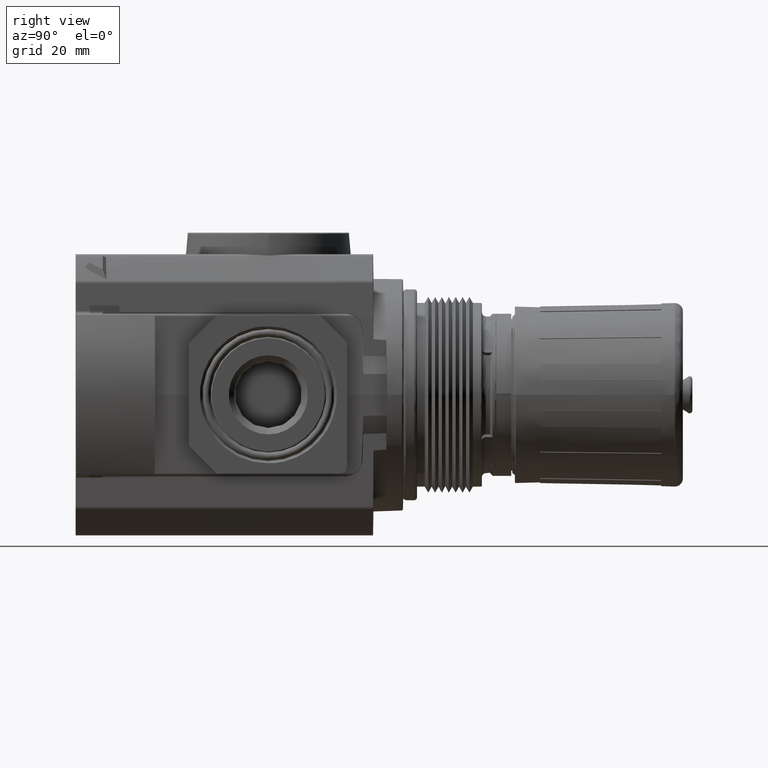
[diagram: clean part render]
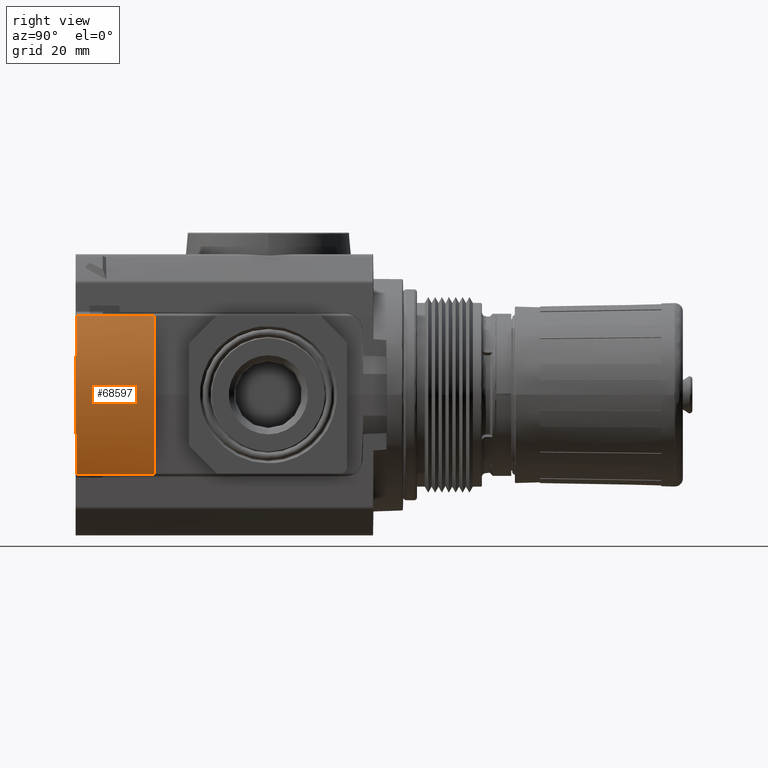
[diagram: same view with one face highlighted and labeled with its STEP entity id]
A machine part, right view. The second image highlights one B-rep face of the part: STEP entity #68597.
In plain terms, the highlighted cylindrical surface (partial cylindrical patch) has radius 31.7 mm, axis along (-0, 1, 0).
Its self-contained STEP definition (entity closure, byte-faithful):
#1038 = LINE ( 'NONE', #42529, #67012 ) ;
#4145 = AXIS2_PLACEMENT_3D ( 'NONE', #4599, #33288, #62708 ) ;
#4599 = CARTESIAN_POINT ( 'NONE',  ( -0.3622047244094492302, 0.5767716535433070613, -1.024442997624098460E-16 ) ) ;
#4888 = CARTESIAN_POINT ( 'NONE',  ( 0.8858389356066497244, 0.002749493199955078526, 0.04970372541741997774 ) ) ;
#5141 = CARTESIAN_POINT ( 'NONE',  ( 0.7428589096599438335, 0.5767716535433070613, -0.5800146375933773468 ) ) ;
#6047 = DIRECTION ( 'NONE',  ( 0.000000000000000000, 0.000000000000000000, 1.000000000000000000 ) ) ;
#9685 = VERTEX_POINT ( 'NONE', #49564 ) ;
#13474 = FACE_OUTER_BOUND ( 'NONE', #74165, .T. ) ;
#14966 = LINE ( 'NONE', #5141, #35538 ) ;
#20112 = CARTESIAN_POINT ( 'NONE',  ( 0.8554303405586340947, 0.003180799581285731568, -0.2749102291122572650 ) ) ;
#22202 = EDGE_CURVE ( 'NONE', #33495, #69875, #1038, .T. ) ;
#25548 = CYLINDRICAL_SURFACE ( 'NONE', #37088, 1.248031496062992129 ) ;
#26517 = CARTESIAN_POINT ( 'NONE',  ( 0.8828079071455615656, 0.002792863552840072362, -0.1003888876088738641 ) ) ;
#27904 = CARTESIAN_POINT ( 'NONE',  ( 0.8609621278550242396, 0.003102753848842853841, 0.2491710359030518129 ) ) ;
#28053 = CARTESIAN_POINT ( 'NONE',  ( 0.7428589096599447217, 0.5767716535433070613, -0.5800146375933775689 ) ) ;
#28155 = DIRECTION ( 'NONE',  ( -0.000000000000000000, 1.000000000000000000, 0.000000000000000000 ) ) ;
#28705 = CARTESIAN_POINT ( 'NONE',  ( -0.3622047244094492302, 0.5767716535433070613, -1.024442997624098460E-16 ) ) ;
#28961 = ORIENTED_EDGE ( 'NONE', *, *, #72873, .T. ) ;
#29071 = DIRECTION ( 'NONE',  ( -0.000000000000000000, 1.000000000000000000, 0.000000000000000000 ) ) ;
#31433 = CARTESIAN_POINT ( 'NONE',  ( 0.7428589126756999228, 0.004727814950376911171, 0.5800146318476547824 ) ) ;
#31577 = DIRECTION ( 'NONE',  ( 0.000000000000000000, -1.000000000000000000, -0.000000000000000000 ) ) ;
#32551 = CARTESIAN_POINT ( 'NONE',  ( 0.8700595125429265719, 0.002974056163604032327, 0.1993695160744456685 ) ) ;
#33288 = DIRECTION ( 'NONE',  ( 0.000000000000000000, -1.000000000000000000, -0.000000000000000000 ) ) ;
#33493 = ORIENTED_EDGE ( 'NONE', *, *, #57541, .F. ) ;
#33495 = VERTEX_POINT ( 'NONE', #68147 ) ;
#34531 = VERTEX_POINT ( 'NONE', #28053 ) ;
#35538 = VECTOR ( 'NONE', #28155, 39.37007874015748143 ) ;
#37088 = AXIS2_PLACEMENT_3D ( 'NONE', #28705, #29071, #6047 ) ;
#37100 = CARTESIAN_POINT ( 'NONE',  ( 0.7428589096599359509, 0.004727814990850045564, -0.5800146375933945553 ) ) ;
#38218 = CARTESIAN_POINT ( 'NONE',  ( 0.8253829775338368258, 0.003602804285529978383, -0.3965712935661434013 ) ) ;
#39594 = CARTESIAN_POINT ( 'NONE',  ( 0.8828563430323378425, 0.002792169954946987533, 0.09964399383182759307 ) ) ;
#42529 = CARTESIAN_POINT ( 'NONE',  ( 0.7428589106523922903, 0.5767716535433070613, 0.5800146357025307564 ) ) ;
#43501 = CARTESIAN_POINT ( 'NONE',  ( 0.8736683762534840358, 0.002922818864497314217, -0.1756081883154367862 ) ) ;
#48441 = CARTESIAN_POINT ( 'NONE',  ( 0.8607206996589521486, 0.003106162290669131545, -0.2503439130015914782 ) ) ;
#49553 = CARTESIAN_POINT ( 'NONE',  ( 0.7899968677200189804, 0.004095199936030704223, -0.4902057950913854545 ) ) ;
#49564 = CARTESIAN_POINT ( 'NONE',  ( 0.7428589096599359509, 0.004727814990850045564, -0.5800146375933945553 ) ) ;
#54836 = CARTESIAN_POINT ( 'NONE',  ( 0.8858145334086855449, 0.002749841631969897685, -0.05031271948347808970 ) ) ;
#55573 = CARTESIAN_POINT ( 'NONE',  ( 0.8738293679582979090, 0.002920532086507756243, 0.1744510838890734605 ) ) ;
#55847 = B_SPLINE_CURVE_WITH_KNOTS ( 'NONE', 3,
 ( #37100, #49553, #38218, #20112, #48441, #60126, #43501, #26517, #54836, #4888, #39594, #55573, #32551, #27904, #61259, #66569, #66936, #31433 ),
 .UNSPECIFIED., .F., .F.,
 ( 4, 2, 2, 2, 2, 2, 2, 2, 4 ),
 ( 4.706869518002327682E-16, 0.007619252882319097094, 0.009524066102898747985, 0.01142887932347840148, 0.01523850576463770500, 0.01904813220579701372, 0.02095294542637667068, 0.02285775864695632070, 0.03047701152927494161 ),
 .UNSPECIFIED. ) ;
#55892 = EDGE_CURVE ( 'NONE', #34531, #33495, #72845, .T. ) ;
#57541 = EDGE_CURVE ( 'NONE', #9685, #69875, #55847, .T. ) ;
#59679 = ORIENTED_EDGE ( 'NONE', *, *, #55892, .T. ) ;
#60126 = CARTESIAN_POINT ( 'NONE',  ( 0.8698360361152315257, 0.002977224227058020058, -0.2007342322963233394 ) ) ;
#61259 = CARTESIAN_POINT ( 'NONE',  ( 0.8556475367743578975, 0.003177741449912166102, 0.2739592915353747382 ) ) ;
#62708 = DIRECTION ( 'NONE',  ( 1.751140417389836774E-15, 0.000000000000000000, 1.000000000000000000 ) ) ;
#63619 = ORIENTED_EDGE ( 'NONE', *, *, #22202, .T. ) ;
#66569 = CARTESIAN_POINT ( 'NONE',  ( 0.8255142038428451290, 0.003600991376603885231, 0.3963201935531359688 ) ) ;
#66936 = CARTESIAN_POINT ( 'NONE',  ( 0.7899968802825830805, 0.004095199766134899333, 0.4902057692606814343 ) ) ;
#67012 = VECTOR ( 'NONE', #31577, 39.37007874015748143 ) ;
#68147 = CARTESIAN_POINT ( 'NONE',  ( 0.7428589101561682284, 0.5767716535433070613, 0.5800146366479538296 ) ) ;
#68597 = ADVANCED_FACE ( 'NONE', ( #13474 ), #25548, .T. ) ;
#69852 = CARTESIAN_POINT ( 'NONE',  ( 0.7428589126756999228, 0.004727814950376911171, 0.5800146318476547824 ) ) ;
#69875 = VERTEX_POINT ( 'NONE', #69852 ) ;
#72845 = CIRCLE ( 'NONE', #4145, 1.248031496062992129 ) ;
#72873 = EDGE_CURVE ( 'NONE', #9685, #34531, #14966, .T. ) ;
#74165 = EDGE_LOOP ( 'NONE', ( #59679, #63619, #33493, #28961 ) ) ;